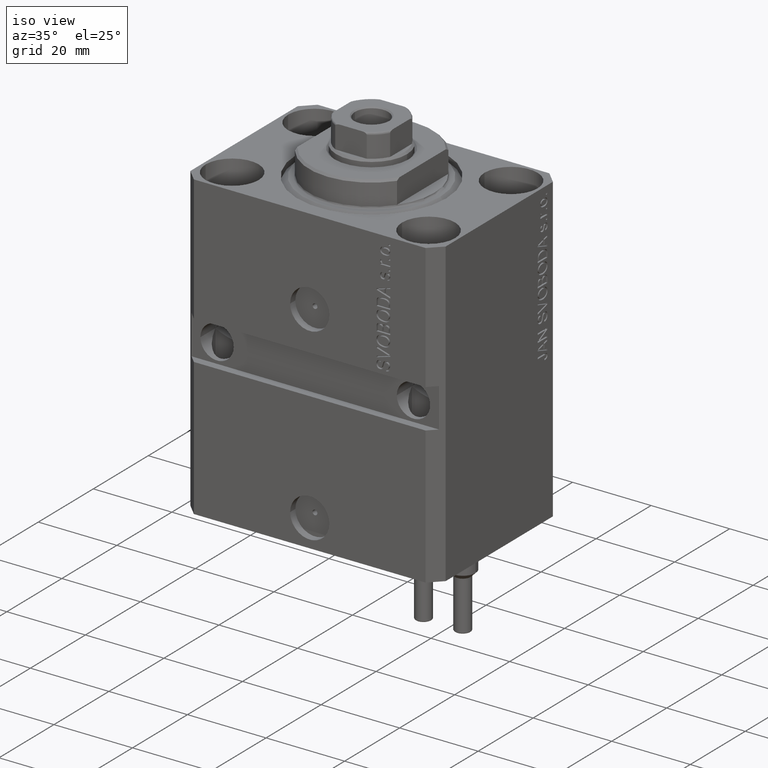
[diagram: clean part render]
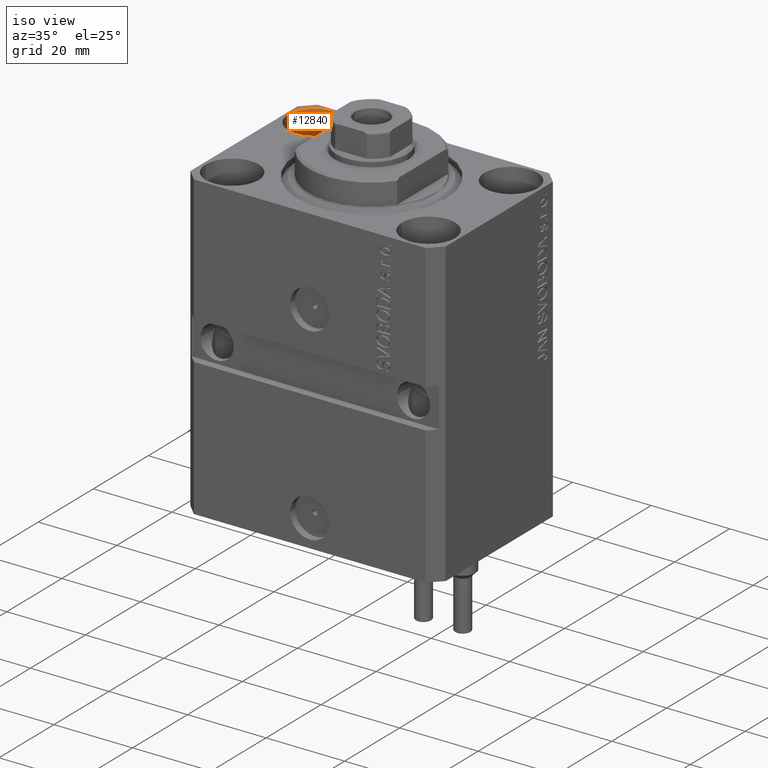
[diagram: same view with one face highlighted and labeled with its STEP entity id]
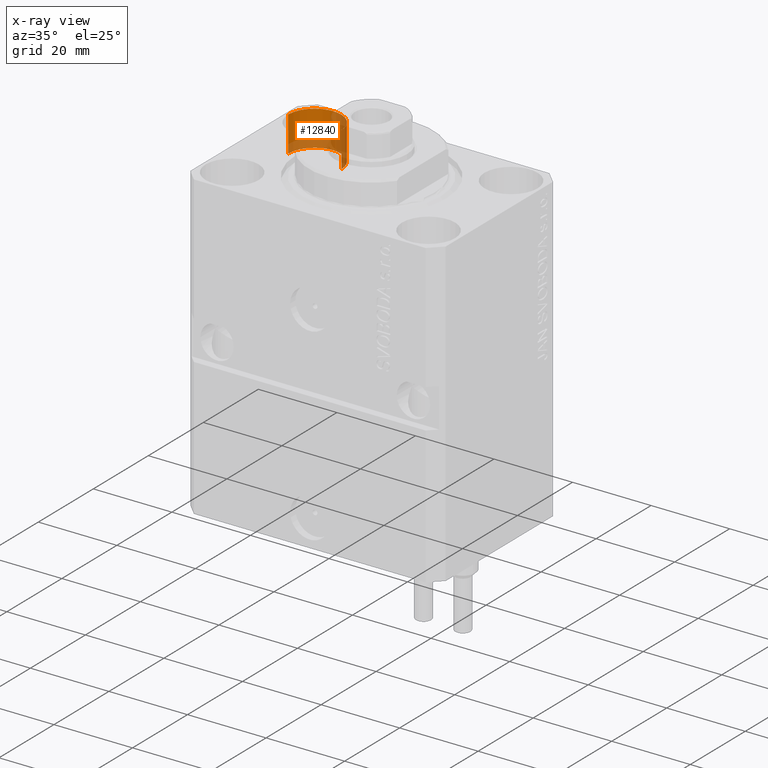
[diagram: x-ray of the same camera — body ghosted, the highlighted face saturated]
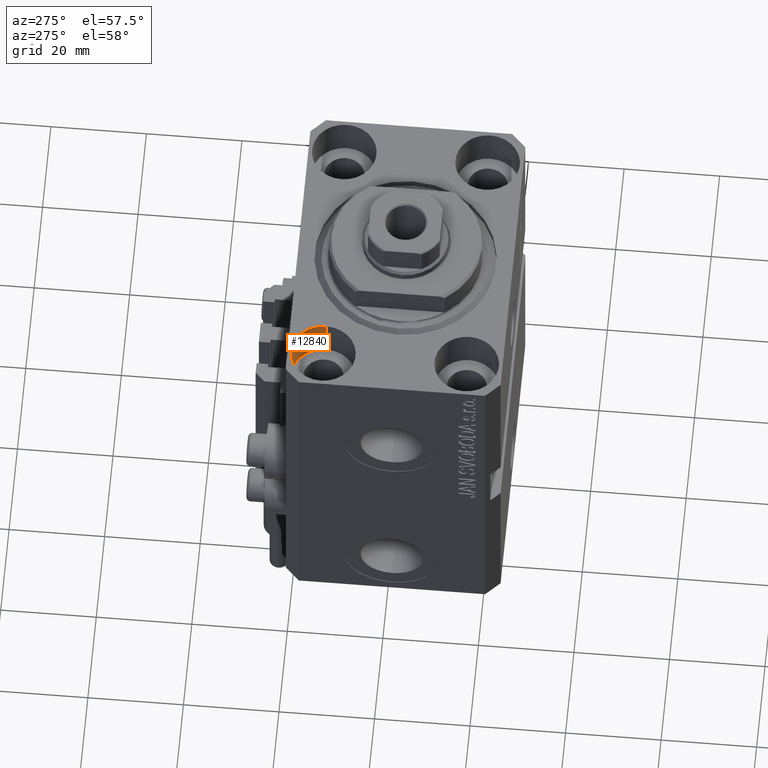
[diagram: same view with one face highlighted and labeled with its STEP entity id]
A machine part, iso view. The second image highlights one B-rep face of the part: STEP entity #12840.
The next image is the same camera in x-ray: the body ghosted, the highlighted face saturated — about 51% of this face is hidden behind the body in this view.
A second angle (auxiliary view) of the same face is appended — the face is thin or edge-on in the first view.
In plain terms, the highlighted cylindrical surface (edge-blend (fillet) strip) has radius 6.75 mm, axis along (0, 0, 1).
Its self-contained STEP definition (entity closure, byte-faithful):
#573 = CARTESIAN_POINT ( 'NONE',  ( -25.00000000000000355, 15.00000000000000000, -9.000000000000000000 ) ) ;
#997 = CIRCLE ( 'NONE', #44425, 6.750000000022533087 ) ;
#2736 = EDGE_CURVE ( 'NONE', #12738, #17440, #35379, .T. ) ;
#3628 = VERTEX_POINT ( 'NONE', #44702 ) ;
#7752 = VECTOR ( 'NONE', #20316, 1000.000000000000000 ) ;
#7850 = DIRECTION ( 'NONE',  ( -0.000000000000000000, -0.000000000000000000, 1.000000000000000000 ) ) ;
#11968 = VERTEX_POINT ( 'NONE', #30164 ) ;
#12716 = EDGE_CURVE ( 'NONE', #12738, #3628, #997, .T. ) ;
#12738 = VERTEX_POINT ( 'NONE', #13445 ) ;
#12840 = ADVANCED_FACE ( 'NONE', ( #26047 ), #40868, .F. ) ;
#13445 = CARTESIAN_POINT ( 'NONE',  ( -18.24999999997747224, 15.00000000000000000, -9.000000000000000000 ) ) ;
#16836 = DIRECTION ( 'NONE',  ( 0.000000000000000000, 0.000000000000000000, 1.000000000000000000 ) ) ;
#17440 = VERTEX_POINT ( 'NONE', #39447 ) ;
#17555 = DIRECTION ( 'NONE',  ( 1.000000000000000000, 0.000000000000000000, 0.000000000000000000 ) ) ;
#18050 = AXIS2_PLACEMENT_3D ( 'NONE', #32741, #47295, #29084 ) ;
#20316 = DIRECTION ( 'NONE',  ( -0.000000000000000000, -0.000000000000000000, 1.000000000000000000 ) ) ;
#21139 = AXIS2_PLACEMENT_3D ( 'NONE', #573, #7850, #37471 ) ;
#22965 = ORIENTED_EDGE ( 'NONE', *, *, #28426, .T. ) ;
#26047 = FACE_OUTER_BOUND ( 'NONE', #37281, .T. ) ;
#26590 = CIRCLE ( 'NONE', #18050, 6.750000000022533087 ) ;
#26684 = VECTOR ( 'NONE', #35387, 1000.000000000000000 ) ;
#28426 = EDGE_CURVE ( 'NONE', #17440, #11968, #26590, .T. ) ;
#29084 = DIRECTION ( 'NONE',  ( 1.000000000000000000, 0.000000000000000000, 0.000000000000000000 ) ) ;
#30164 = CARTESIAN_POINT ( 'NONE',  ( -31.75000000002253842, 15.00000000000000000, 0.000000000000000000 ) ) ;
#31024 = CARTESIAN_POINT ( 'NONE',  ( -18.24999999997747224, 15.00000000000000000, -9.000000000000000000 ) ) ;
#31490 = EDGE_CURVE ( 'NONE', #3628, #11968, #42429, .T. ) ;
#31662 = CARTESIAN_POINT ( 'NONE',  ( -25.00000000000000355, 15.00000000000000000, -9.000000000000000000 ) ) ;
#32741 = CARTESIAN_POINT ( 'NONE',  ( -25.00000000000000355, 15.00000000000000000, 0.000000000000000000 ) ) ;
#35153 = CARTESIAN_POINT ( 'NONE',  ( -31.75000000002253842, 15.00000000000000000, -9.000000000000000000 ) ) ;
#35379 = LINE ( 'NONE', #31024, #7752 ) ;
#35387 = DIRECTION ( 'NONE',  ( -0.000000000000000000, -0.000000000000000000, 1.000000000000000000 ) ) ;
#37281 = EDGE_LOOP ( 'NONE', ( #42138, #39928, #40874, #22965 ) ) ;
#37471 = DIRECTION ( 'NONE',  ( 1.000000000000000000, 0.000000000000000000, 0.000000000000000000 ) ) ;
#39447 = CARTESIAN_POINT ( 'NONE',  ( -18.24999999997747224, 15.00000000000000000, 0.000000000000000000 ) ) ;
#39928 = ORIENTED_EDGE ( 'NONE', *, *, #12716, .F. ) ;
#40868 = CYLINDRICAL_SURFACE ( 'NONE', #21139, 6.750000000022533087 ) ;
#40874 = ORIENTED_EDGE ( 'NONE', *, *, #2736, .T. ) ;
#42138 = ORIENTED_EDGE ( 'NONE', *, *, #31490, .F. ) ;
#42429 = LINE ( 'NONE', #35153, #26684 ) ;
#44425 = AXIS2_PLACEMENT_3D ( 'NONE', #31662, #16836, #17555 ) ;
#44702 = CARTESIAN_POINT ( 'NONE',  ( -31.75000000002253842, 15.00000000000000000, -9.000000000000000000 ) ) ;
#47295 = DIRECTION ( 'NONE',  ( 0.000000000000000000, 0.000000000000000000, 1.000000000000000000 ) ) ;